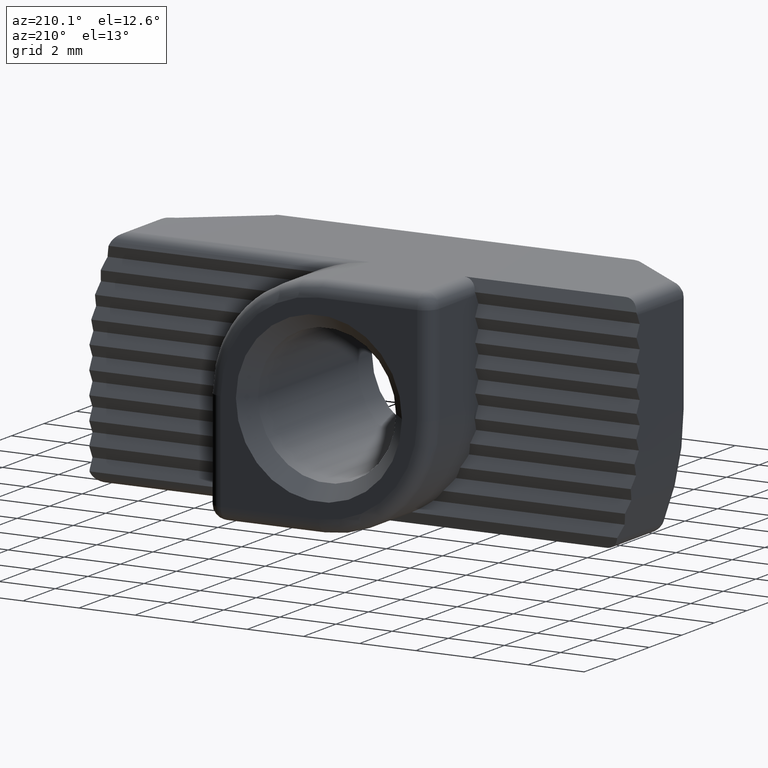
[diagram: clean part render]
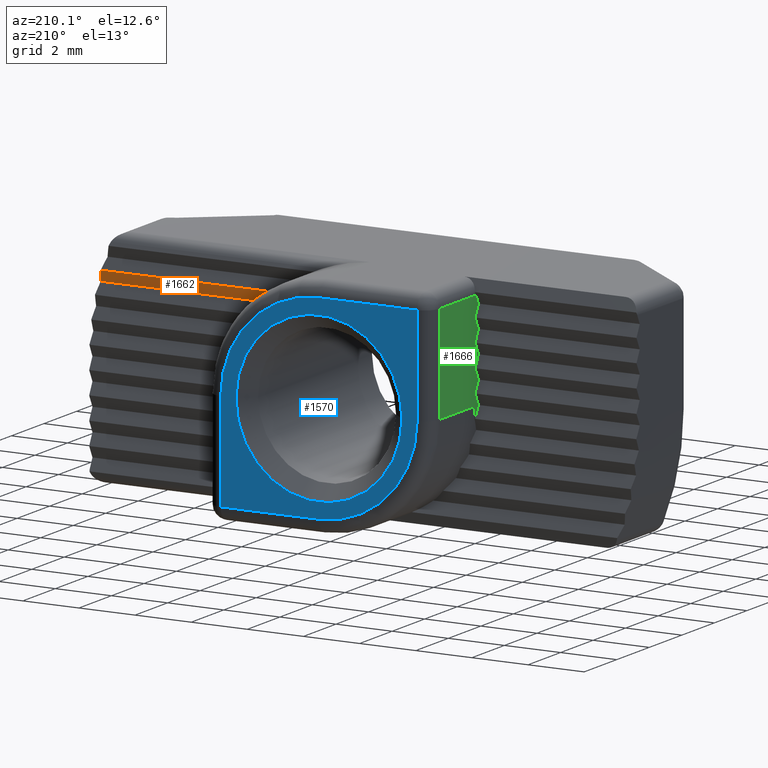
[diagram: same view with three faces highlighted in distinct colors, each labeled with its STEP entity id]
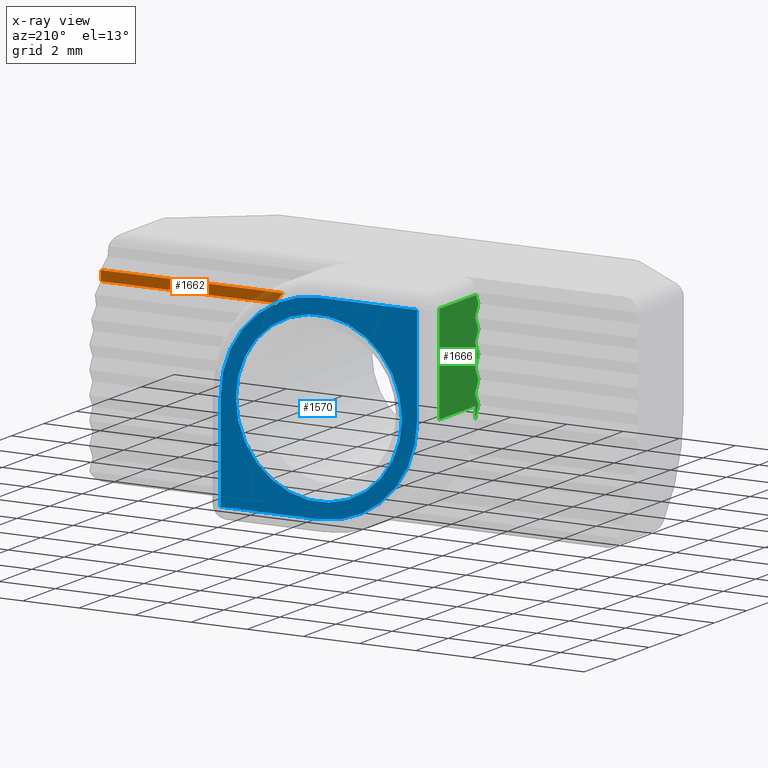
[diagram: x-ray of the same camera — body ghosted, the three highlighted faces saturated]
A machine part, auxiliary view with three faces highlighted in distinct colors.
The next image is the same camera in x-ray (body ghosted, the three faces saturated) — at least one of them is partly hidden behind the body in this view.
Their STEP definitions:

[orange] entity #1662 — the highlighted planar face has unit normal (0, -0.8944, 0.4472).
#49=ELLIPSE('',#1721,4.47213595499958,4.);
#66=ELLIPSE('',#1800,10.9008313903115,9.75);
#214=LINE('',#2947,#344);
#217=LINE('',#2952,#347);
#344=VECTOR('',#2396,6.48272731745666);
#347=VECTOR('',#2403,6.25);
#397=PLANE('',#1868);
#525=FACE_OUTER_BOUND('',#629,.T.);
#629=EDGE_LOOP('',(#1524,#1525,#1526,#1527));
#747=VERTEX_POINT('',#2570);
#748=VERTEX_POINT('',#2572);
#788=VERTEX_POINT('',#2763);
#789=VERTEX_POINT('',#2765);
#910=EDGE_CURVE('',#747,#748,#49,.T.);
#985=EDGE_CURVE('',#789,#788,#66,.T.);
#1075=EDGE_CURVE('',#747,#789,#214,.T.);
#1078=EDGE_CURVE('',#788,#748,#217,.T.);
#1524=ORIENTED_EDGE('',*,*,#985,.T.);
#1525=ORIENTED_EDGE('',*,*,#1078,.T.);
#1526=ORIENTED_EDGE('',*,*,#910,.F.);
#1527=ORIENTED_EDGE('',*,*,#1075,.T.);
#1662=ADVANCED_FACE('',(#525),#397,.F.);
#1721=AXIS2_PLACEMENT_3D('',#2573,#2017,#2018);
#1800=AXIS2_PLACEMENT_3D('',#2766,#2196,#2197);
#1868=AXIS2_PLACEMENT_3D('',#2951,#2401,#2402);
#2017=DIRECTION('center_axis',(0.,0.894427190999917,-0.447213595499956));
#2018=DIRECTION('ref_axis',(1.24126707662364E-16,-0.447213595499956,-0.894427190999917));
#2196=DIRECTION('center_axis',(0.,0.894427190999917,-0.447213595499956));
#2197=DIRECTION('ref_axis',(0.,0.447213595499956,0.894427190999917));
#2396=DIRECTION('',(1.,-6.03382078600629E-17,1.20676415720126E-16));
#2401=DIRECTION('center_axis',(0.,-0.894427190999917,0.447213595499956));
#2402=DIRECTION('ref_axis',(0.,0.447213595499956,0.894427190999917));
#2403=DIRECTION('',(-1.,0.,0.));
#2570=CARTESIAN_POINT('',(2.85657137141714,0.,2.8));
#2572=CARTESIAN_POINT('',(3.2,-0.2,2.4));
#2573=CARTESIAN_POINT('Origin',(5.55111512312578E-16,-1.39999999999999,
0.));
#2763=CARTESIAN_POINT('',(9.45,-0.2,2.4));
#2765=CARTESIAN_POINT('',(9.33929868887381,-5.55111512312578E-16,2.8));
#2766=CARTESIAN_POINT('Origin',(0.,-1.39999999999999,0.));
#2947=CARTESIAN_POINT('',(9.75,-6.24500451351651E-16,2.8));
#2951=CARTESIAN_POINT('Origin',(9.75,-0.2,2.4));
#2952=CARTESIAN_POINT('',(9.75,-0.2,2.4));

[blue] entity #1570 — the highlighted planar face has unit normal (0, 1, 0).
#89=LINE('',#2425,#219);
#90=LINE('',#2427,#220);
#91=LINE('',#2431,#221);
#92=LINE('',#2433,#222);
#219=VECTOR('',#1887,3.5);
#220=VECTOR('',#1888,3.5);
#221=VECTOR('',#1891,3.5);
#222=VECTOR('',#1892,3.5);
#349=PLANE('',#1674);
#428=FACE_BOUND('',#535,.T.);
#433=FACE_OUTER_BOUND('',#534,.T.);
#534=EDGE_LOOP('',(#1084,#1085,#1086,#1087,#1088,#1089));
#535=EDGE_LOOP('',(#1090));
#635=CIRCLE('',#1671,2.9585);
#637=CIRCLE('',#1675,3.5);
#638=CIRCLE('',#1676,3.5);
#691=VERTEX_POINT('',#2417);
#693=VERTEX_POINT('',#2423);
#694=VERTEX_POINT('',#2424);
#695=VERTEX_POINT('',#2426);
#696=VERTEX_POINT('',#2428);
#697=VERTEX_POINT('',#2430);
#698=VERTEX_POINT('',#2432);
#839=EDGE_CURVE('',#691,#691,#635,.T.);
#841=EDGE_CURVE('',#693,#694,#89,.T.);
#842=EDGE_CURVE('',#695,#693,#90,.T.);
#843=EDGE_CURVE('',#696,#695,#637,.T.);
#844=EDGE_CURVE('',#697,#696,#91,.T.);
#845=EDGE_CURVE('',#698,#697,#92,.T.);
#846=EDGE_CURVE('',#694,#698,#638,.T.);
#1084=ORIENTED_EDGE('',*,*,#841,.F.);
#1085=ORIENTED_EDGE('',*,*,#842,.F.);
#1086=ORIENTED_EDGE('',*,*,#843,.F.);
#1087=ORIENTED_EDGE('',*,*,#844,.F.);
#1088=ORIENTED_EDGE('',*,*,#845,.F.);
#1089=ORIENTED_EDGE('',*,*,#846,.F.);
#1090=ORIENTED_EDGE('',*,*,#839,.F.);
#1570=ADVANCED_FACE('',(#433,#428),#349,.T.);
#1671=AXIS2_PLACEMENT_3D('',#2418,#1879,#1880);
#1674=AXIS2_PLACEMENT_3D('',#2422,#1885,#1886);
#1675=AXIS2_PLACEMENT_3D('',#2429,#1889,#1890);
#1676=AXIS2_PLACEMENT_3D('',#2434,#1893,#1894);
#1879=DIRECTION('center_axis',(0.,1.,0.));
#1880=DIRECTION('ref_axis',(1.,0.,0.));
#1885=DIRECTION('center_axis',(0.,1.,0.));
#1886=DIRECTION('ref_axis',(-1.,0.,0.));
#1887=DIRECTION('',(0.,0.,1.));
#1888=DIRECTION('',(1.,0.,0.));
#1889=DIRECTION('center_axis',(0.,-1.,0.));
#1890=DIRECTION('ref_axis',(-0.707106781186548,0.,-0.707106781186547));
#1891=DIRECTION('',(0.,0.,-1.));
#1892=DIRECTION('',(-1.,0.,0.));
#1893=DIRECTION('center_axis',(0.,-1.,0.));
#1894=DIRECTION('ref_axis',(0.707106781186547,0.,0.707106781186548));
#2417=CARTESIAN_POINT('',(-2.9585,2.7,1.75009053630919E-15));
#2418=CARTESIAN_POINT('Origin',(1.66533453693773E-15,2.7,1.38777878078145E-15));
#2422=CARTESIAN_POINT('Origin',(4.,2.7,0.));
#2423=CARTESIAN_POINT('',(3.5,2.7,-3.5));
#2424=CARTESIAN_POINT('',(3.5,2.7,0.));
#2425=CARTESIAN_POINT('',(3.5,2.7,0.));
#2426=CARTESIAN_POINT('',(0.,2.7,-3.5));
#2427=CARTESIAN_POINT('',(2.,2.7,-3.5));
#2428=CARTESIAN_POINT('',(-3.5,2.7,-5.55111512312578E-16));
#2429=CARTESIAN_POINT('Origin',(0.,2.7,-5.55111512312578E-16));
#2430=CARTESIAN_POINT('',(-3.5,2.7,3.5));
#2431=CARTESIAN_POINT('',(-3.5,2.7,0.));
#2432=CARTESIAN_POINT('',(8.32667268468867E-16,2.7,3.5));
#2433=CARTESIAN_POINT('',(2.,2.7,3.5));
#2434=CARTESIAN_POINT('Origin',(5.55111512312578E-16,2.7,0.));

[green] entity #1666 — the highlighted planar face has unit normal (-1, 0, 0).
#111=LINE('',#2519,#241);
#113=LINE('',#2530,#243);
#168=LINE('',#2844,#298);
#186=LINE('',#2879,#316);
#188=LINE('',#2884,#318);
#191=LINE('',#2890,#321);
#194=LINE('',#2894,#324);
#195=LINE('',#2896,#325);
#196=LINE('',#2900,#326);
#198=LINE('',#2904,#328);
#200=LINE('',#2908,#330);
#202=LINE('',#2911,#332);
#203=LINE('',#2914,#333);
#218=LINE('',#2956,#348);
#241=VECTOR('',#1977,3.5);
#243=VECTOR('',#1991,2.25);
#298=VECTOR('',#2276,0.447213595499957);
#316=VECTOR('',#2310,0.33541019662497);
#318=VECTOR('',#2314,0.44721359549996);
#321=VECTOR('',#2319,0.447213595499963);
#324=VECTOR('',#2324,0.447213595499954);
#325=VECTOR('',#2327,0.447213595499959);
#326=VECTOR('',#2332,0.447213595499956);
#328=VECTOR('',#2336,0.44721359549996);
#330=VECTOR('',#2340,0.447213595499957);
#332=VECTOR('',#2344,0.447213595499958);
#333=VECTOR('',#2347,0.400000000000005);
#348=VECTOR('',#2410,2.2);
#400=PLANE('',#1872);
#529=FACE_OUTER_BOUND('',#633,.T.);
#633=EDGE_LOOP('',(#1550,#1551,#1552,#1553,#1554,#1555,#1556,#1557,#1558,
#1559,#1560,#1561,#1562,#1563));
#722=VERTEX_POINT('',#2492);
#728=VERTEX_POINT('',#2517);
#731=VERTEX_POINT('',#2529);
#815=VERTEX_POINT('',#2836);
#817=VERTEX_POINT('',#2842);
#826=VERTEX_POINT('',#2878);
#827=VERTEX_POINT('',#2882);
#828=VERTEX_POINT('',#2883);
#829=VERTEX_POINT('',#2888);
#830=VERTEX_POINT('',#2889);
#831=VERTEX_POINT('',#2899);
#832=VERTEX_POINT('',#2903);
#833=VERTEX_POINT('',#2907);
#834=VERTEX_POINT('',#2913);
#886=EDGE_CURVE('',#728,#722,#111,.T.);
#891=EDGE_CURVE('',#722,#731,#113,.T.);
#1024=EDGE_CURVE('',#817,#815,#168,.T.);
#1042=EDGE_CURVE('',#731,#826,#186,.T.);
#1044=EDGE_CURVE('',#827,#828,#188,.T.);
#1047=EDGE_CURVE('',#829,#830,#191,.T.);
#1050=EDGE_CURVE('',#828,#829,#194,.T.);
#1051=EDGE_CURVE('',#826,#827,#195,.T.);
#1052=EDGE_CURVE('',#830,#831,#196,.T.);
#1054=EDGE_CURVE('',#831,#832,#198,.T.);
#1056=EDGE_CURVE('',#832,#833,#200,.T.);
#1058=EDGE_CURVE('',#833,#817,#202,.T.);
#1059=EDGE_CURVE('',#815,#834,#203,.T.);
#1079=EDGE_CURVE('',#834,#728,#218,.T.);
#1550=ORIENTED_EDGE('',*,*,#886,.F.);
#1551=ORIENTED_EDGE('',*,*,#1079,.F.);
#1552=ORIENTED_EDGE('',*,*,#1059,.F.);
#1553=ORIENTED_EDGE('',*,*,#1024,.F.);
#1554=ORIENTED_EDGE('',*,*,#1058,.F.);
#1555=ORIENTED_EDGE('',*,*,#1056,.F.);
#1556=ORIENTED_EDGE('',*,*,#1054,.F.);
#1557=ORIENTED_EDGE('',*,*,#1052,.F.);
#1558=ORIENTED_EDGE('',*,*,#1047,.F.);
#1559=ORIENTED_EDGE('',*,*,#1050,.F.);
#1560=ORIENTED_EDGE('',*,*,#1044,.F.);
#1561=ORIENTED_EDGE('',*,*,#1051,.F.);
#1562=ORIENTED_EDGE('',*,*,#1042,.F.);
#1563=ORIENTED_EDGE('',*,*,#891,.F.);
#1666=ADVANCED_FACE('',(#529),#400,.T.);
#1872=AXIS2_PLACEMENT_3D('',#2957,#2411,#2412);
#1977=DIRECTION('',(0.,0.,1.));
#1991=DIRECTION('',(0.,-1.,0.));
#2276=DIRECTION('',(0.,0.447213595499957,-0.894427190999916));
#2310=DIRECTION('',(0.,-0.447213595499956,-0.894427190999917));
#2314=DIRECTION('',(0.,-0.447213595499956,-0.894427190999917));
#2319=DIRECTION('',(0.,-0.44721359549995,-0.89442719099992));
#2324=DIRECTION('',(0.,0.447213595499961,-0.894427190999914));
#2327=DIRECTION('',(0.,0.447213595499957,-0.894427190999916));
#2332=DIRECTION('',(0.,0.447213595499958,-0.894427190999916));
#2336=DIRECTION('',(0.,-0.447213595499955,-0.894427190999917));
#2340=DIRECTION('',(0.,0.447213595499958,-0.894427190999916));
#2344=DIRECTION('',(0.,-0.447213595499955,-0.894427190999917));
#2347=DIRECTION('',(0.,0.,1.));
#2410=DIRECTION('',(0.,1.,0.));
#2411=DIRECTION('center_axis',(-1.,0.,0.));
#2412=DIRECTION('ref_axis',(0.,-1.,0.));
#2492=CARTESIAN_POINT('',(-4.,2.2,3.5));
#2517=CARTESIAN_POINT('',(-4.,2.2,-5.55111512312578E-16));
#2519=CARTESIAN_POINT('',(-4.,2.2,0.));
#2529=CARTESIAN_POINT('',(-4.,-0.0499999999999999,3.5));
#2530=CARTESIAN_POINT('',(-4.,0.542762680090972,3.5));
#2836=CARTESIAN_POINT('',(-4.,-5.55111512312578E-16,-0.400000000000005));
#2842=CARTESIAN_POINT('',(-4.,-0.2,-6.66133814775094E-15));
#2844=CARTESIAN_POINT('',(-4.,-0.55,0.699999999999996));
#2878=CARTESIAN_POINT('',(-4.,-0.2,3.2));
#2879=CARTESIAN_POINT('',(-4.,-0.37,2.86));
#2882=CARTESIAN_POINT('',(-4.,0.,2.8));
#2883=CARTESIAN_POINT('',(-4.,-0.2,2.4));
#2884=CARTESIAN_POINT('',(-4.,-0.209999999999999,2.38));
#2888=CARTESIAN_POINT('',(-4.,-5.55111512312578E-16,2.));
#2889=CARTESIAN_POINT('',(-4.,-0.2,1.59999999999999));
#2890=CARTESIAN_POINT('',(-4.,-0.0500000000000001,1.9));
#2894=CARTESIAN_POINT('',(-4.,-0.0699999999999999,2.14));
#2896=CARTESIAN_POINT('',(-4.,0.0899999999999997,2.62));
#2899=CARTESIAN_POINT('',(-4.,-5.55111512312578E-16,1.19999999999999));
#2900=CARTESIAN_POINT('',(-4.,-0.230000000000001,1.65999999999999));
#2903=CARTESIAN_POINT('',(-4.,-0.2,0.799999999999993));
#2904=CARTESIAN_POINT('',(-4.,0.11,1.42));
#2907=CARTESIAN_POINT('',(-4.,-5.55111512312578E-16,0.399999999999994));
#2908=CARTESIAN_POINT('',(-4.,-0.390000000000001,1.17999999999999));
#2911=CARTESIAN_POINT('',(-4.,0.269999999999999,0.939999999999997));
#2913=CARTESIAN_POINT('',(-4.,0.,-5.55111512312578E-16));
#2914=CARTESIAN_POINT('',(-4.,-2.77555756156289E-16,0.899999999999999));
#2956=CARTESIAN_POINT('',(-4.,2.7,-5.55111512312578E-16));
#2957=CARTESIAN_POINT('Origin',(-4.,2.7,0.));